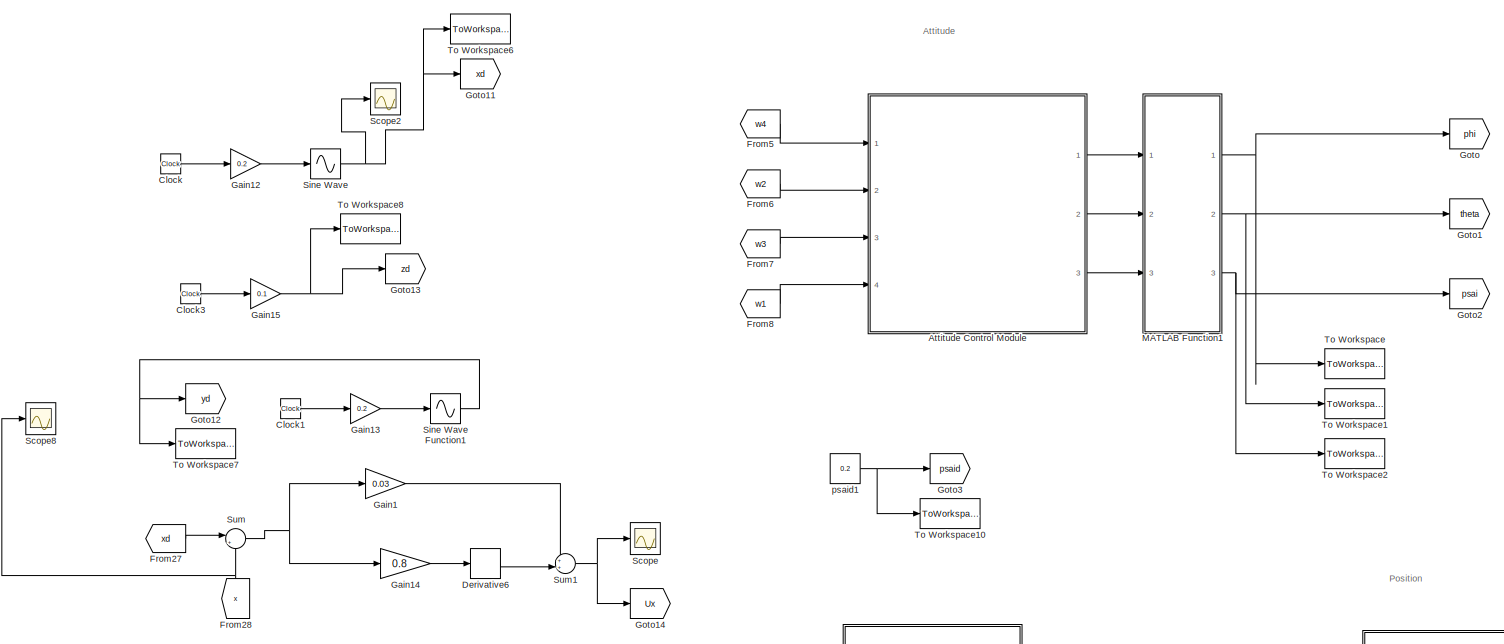
[diagram: root canvas - part 1/4, top center region]
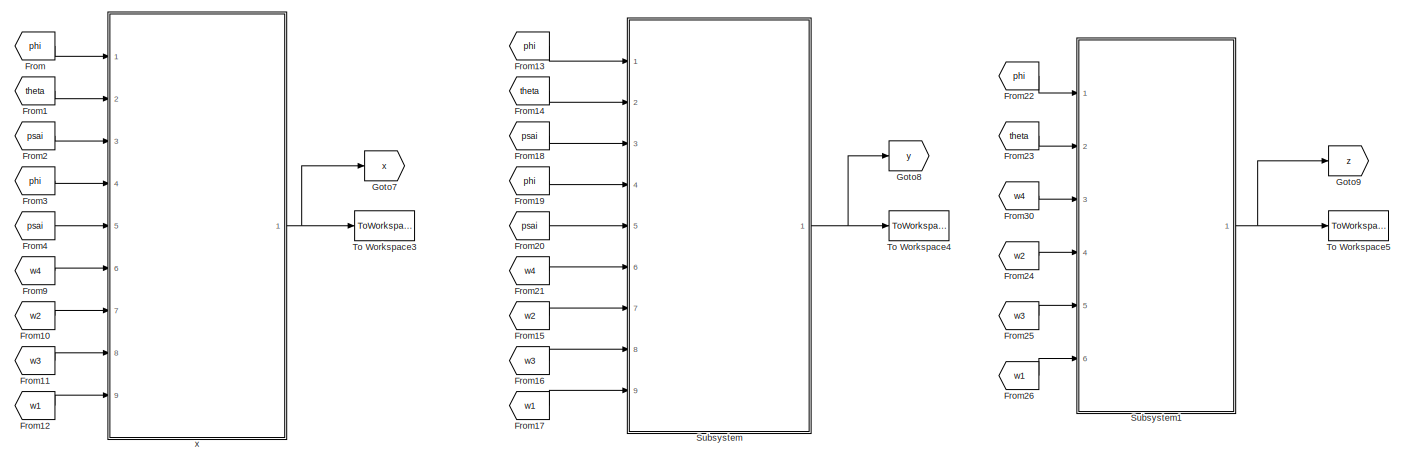
[diagram: root canvas - part 2/4, middle right region]
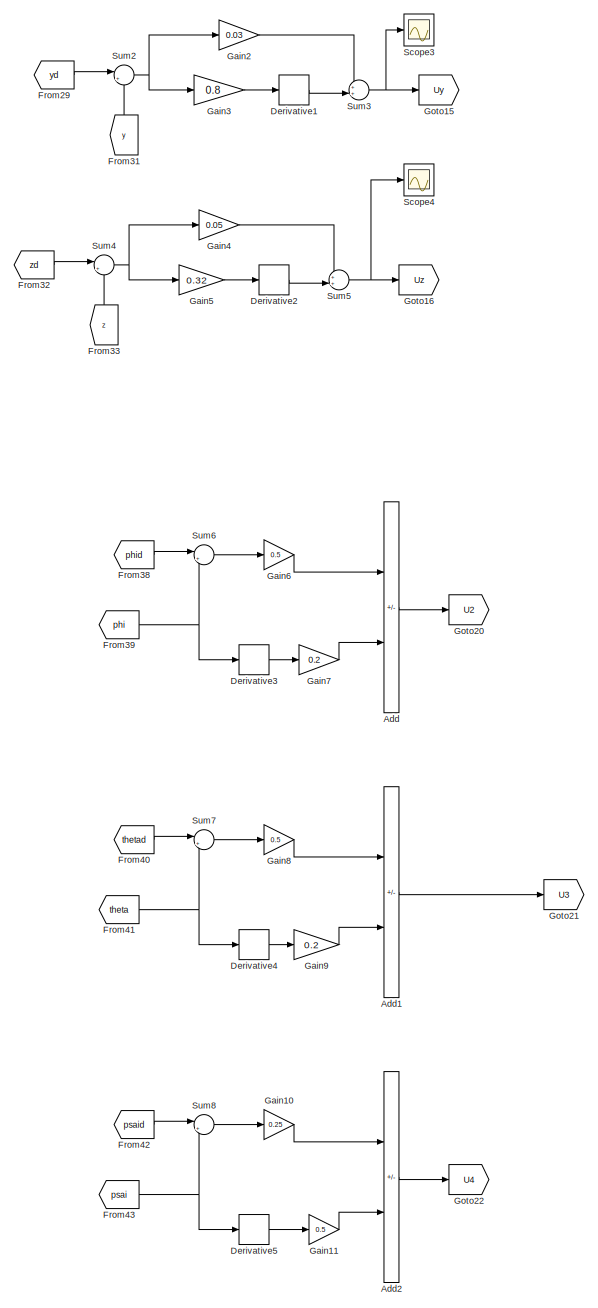
[diagram: root canvas - part 3/4, bottom left region]
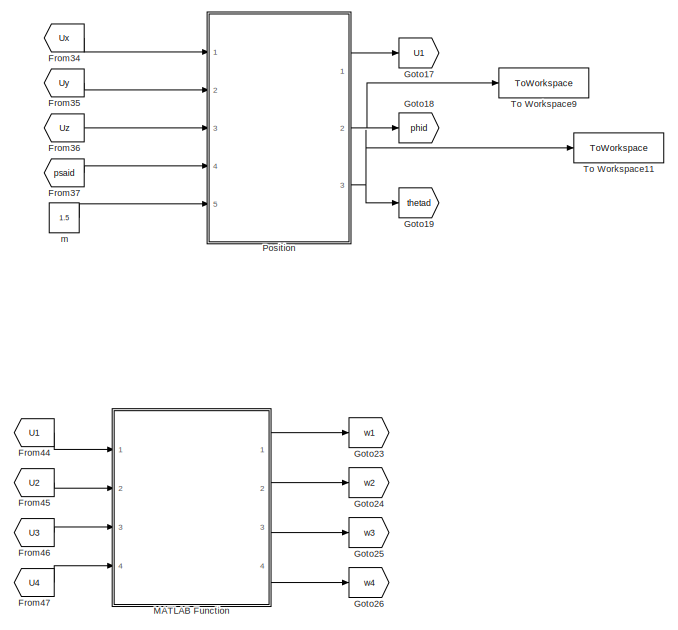
[diagram: root canvas - part 4/4, bottom center region]
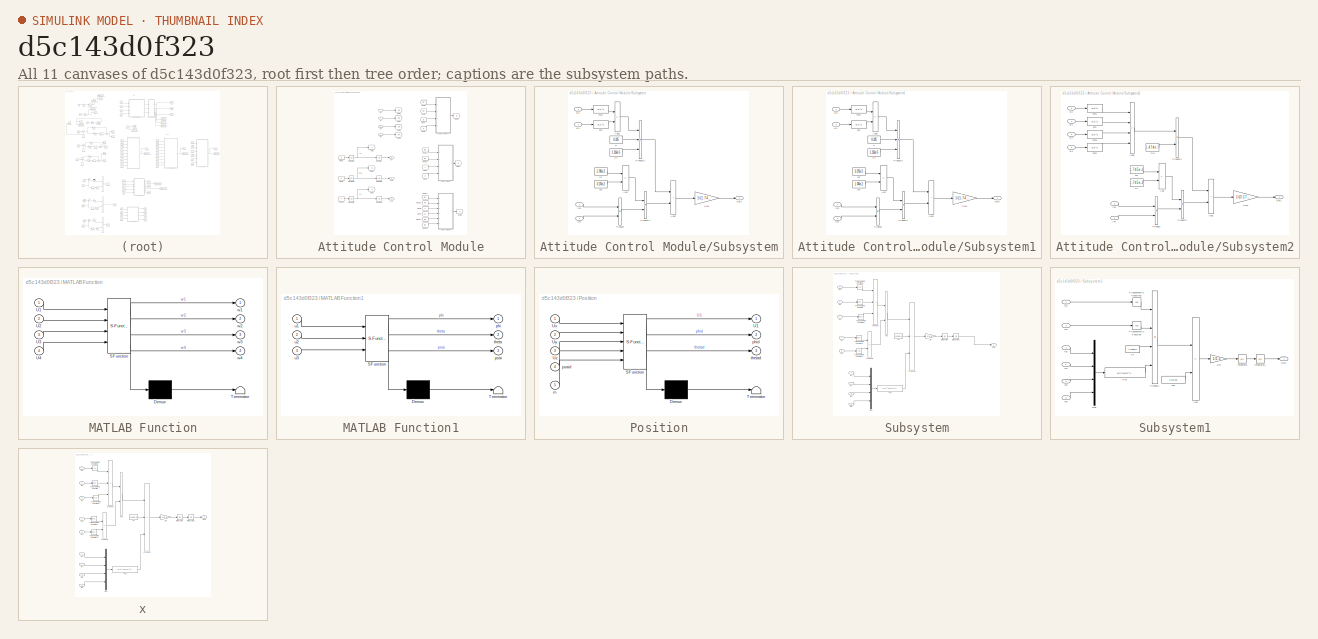
[diagram: thumbnail index - all 11 canvases of the model, root first then tree order]
MODEL slx_d5c143d0f323
KIND model
CONFIG AbsTol = auto
CONFIG EnableMultiTasking = off
CONFIG FixedStep = 0.1
CONFIG MaxStep = auto
CONFIG MinStep = auto
CONFIG RelTol = 1e-3
CONFIG SampleTimeConstraint = Unconstrained
CONFIG SolverName = FixedStepAuto
CONFIG StartTime = 0.0
CONFIG StopTime = 150
BLOCK [Sum] Add
  IconShape = rectangular
  Inputs = +-
  Ports = [2, 1]
BLOCK [Sum] Add1
  IconShape = rectangular
  Inputs = +-
  Ports = [2, 1]
BLOCK [Sum] Add2
  IconShape = rectangular
  Inputs = +-
  Ports = [2, 1]
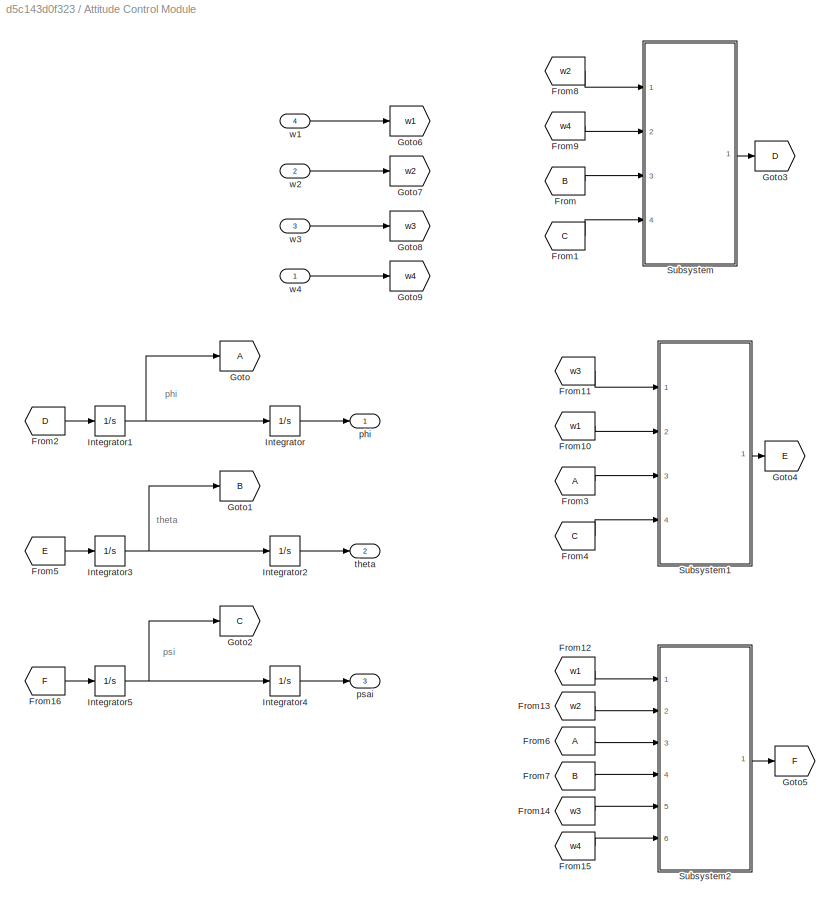
BLOCK [SubSystem] Attitude Control Module
  Ports = [4, 3]
  RequestExecContextInheritance = off
BLOCK [From] Attitude Control Module/From
  GotoTag = B
BLOCK [From] Attitude Control Module/From1
  GotoTag = C
BLOCK [From] Attitude Control Module/From10
  GotoTag = w1
BLOCK [From] Attitude Control Module/From11
  GotoTag = w3
BLOCK [From] Attitude Control Module/From12
  GotoTag = w1
BLOCK [From] Attitude Control Module/From13
  GotoTag = w2
BLOCK [From] Attitude Control Module/From14
  GotoTag = w3
BLOCK [From] Attitude Control Module/From15
  GotoTag = w4
BLOCK [From] Attitude Control Module/From16
  GotoTag = F
BLOCK [From] Attitude Control Module/From2
  GotoTag = D
BLOCK [From] Attitude Control Module/From3
BLOCK [From] Attitude Control Module/From4
  GotoTag = C
BLOCK [From] Attitude Control Module/From5
  GotoTag = E
BLOCK [From] Attitude Control Module/From6
BLOCK [From] Attitude Control Module/From7
  GotoTag = B
BLOCK [From] Attitude Control Module/From8
  GotoTag = w2
BLOCK [From] Attitude Control Module/From9
  GotoTag = w4
BLOCK [Goto] Attitude Control Module/Goto
BLOCK [Goto] Attitude Control Module/Goto1
  GotoTag = B
BLOCK [Goto] Attitude Control Module/Goto2
  GotoTag = C
BLOCK [Goto] Attitude Control Module/Goto3
  GotoTag = D
BLOCK [Goto] Attitude Control Module/Goto4
  GotoTag = E
BLOCK [Goto] Attitude Control Module/Goto5
  GotoTag = F
BLOCK [Goto] Attitude Control Module/Goto6
  GotoTag = w1
BLOCK [Goto] Attitude Control Module/Goto7
  GotoTag = w2
BLOCK [Goto] Attitude Control Module/Goto8
  GotoTag = w3
BLOCK [Goto] Attitude Control Module/Goto9
  GotoTag = w4
BLOCK [Integrator] Attitude Control Module/Integrator
  Ports = [1, 1]
BLOCK [Integrator] Attitude Control Module/Integrator1
  Ports = [1, 1]
BLOCK [Integrator] Attitude Control Module/Integrator2
  Ports = [1, 1]
BLOCK [Integrator] Attitude Control Module/Integrator3
  Ports = [1, 1]
BLOCK [Integrator] Attitude Control Module/Integrator4
  Ports = [1, 1]
BLOCK [Integrator] Attitude Control Module/Integrator5
  Ports = [1, 1]
BLOCK [SubSystem] Attitude Control Module/Subsystem
  Ports = [4, 1]
  RequestExecContextInheritance = off
BLOCK [Gain] Attitude Control Module/Subsystem/1//Jxx
  Gain = 1/(1.745e-2)
BLOCK [Sum] Attitude Control Module/Subsystem/Add
  IconShape = rectangular
  Inputs = +-
  Ports = [2, 1]
BLOCK [Sum] Attitude Control Module/Subsystem/Add1
  IconShape = rectangular
  Ports = [2, 1]
BLOCK [Sum] Attitude Control Module/Subsystem/Add2
  IconShape = rectangular
  Inputs = +-
  Ports = [2, 1]
BLOCK [Constant] Attitude Control Module/Subsystem/CT
  Value = 1.116e-5
BLOCK [Fcn] Attitude Control Module/Subsystem/Fcn
  Expr = u(1)^2
BLOCK [Fcn] Attitude Control Module/Subsystem/Fcn1
  Expr = u(1)^2
BLOCK [Inport] Attitude Control Module/Subsystem/In3
  Port = 3
BLOCK [Inport] Attitude Control Module/Subsystem/In4
  Port = 4
BLOCK [Constant] Attitude Control Module/Subsystem/Jyy
  Value = 1.745e-2
BLOCK [Constant] Attitude Control Module/Subsystem/Jzz 
  Value = 3.175e-2
BLOCK [Outport] Attitude Control Module/Subsystem/Out1
  VectorParamsAs1DForOutWhenUnconnected = off
BLOCK [Product] Attitude Control Module/Subsystem/Product
  Ports = [2, 1]
BLOCK [Product] Attitude Control Module/Subsystem/Product1
  Ports = [2, 1]
BLOCK [Product] Attitude Control Module/Subsystem/Product2
  Inputs = 3
  Ports = [3, 1]
BLOCK [Constant] Attitude Control Module/Subsystem/d
  Value = 0.225
BLOCK [Inport] Attitude Control Module/Subsystem/w2
BLOCK [Inport] Attitude Control Module/Subsystem/w4
  Port = 2
BLOCK [SubSystem] Attitude Control Module/Subsystem1
  Ports = [4, 1]
  RequestExecContextInheritance = off
BLOCK [Gain] Attitude Control Module/Subsystem1/1//Jxx
  Gain = 1/(1.745e-2)
BLOCK [Sum] Attitude Control Module/Subsystem1/Add
  IconShape = rectangular
  Inputs = +-
  Ports = [2, 1]
BLOCK [Sum] Attitude Control Module/Subsystem1/Add1
  IconShape = rectangular
  Ports = [2, 1]
BLOCK [Sum] Attitude Control Module/Subsystem1/Add2
  IconShape = rectangular
  Inputs = +-
  Ports = [2, 1]
BLOCK [Constant] Attitude Control Module/Subsystem1/CT
  Value = 1.116e-5
BLOCK [Fcn] Attitude Control Module/Subsystem1/Fcn
  Expr = u(1)^2
BLOCK [Fcn] Attitude Control Module/Subsystem1/Fcn1
  Expr = u(1)^2
BLOCK [Inport] Attitude Control Module/Subsystem1/In3
  Port = 3
BLOCK [Inport] Attitude Control Module/Subsystem1/In4
  Port = 4
BLOCK [Constant] Attitude Control Module/Subsystem1/Jxx
  Value = 1.745e-2
BLOCK [Constant] Attitude Control Module/Subsystem1/Jzz
  Value = 3.175e-2
BLOCK [Outport] Attitude Control Module/Subsystem1/Out1
  VectorParamsAs1DForOutWhenUnconnected = off
BLOCK [Product] Attitude Control Module/Subsystem1/Product
  Ports = [2, 1]
BLOCK [Product] Attitude Control Module/Subsystem1/Product1
  Ports = [2, 1]
BLOCK [Product] Attitude Control Module/Subsystem1/Product2
  Inputs = 3
  Ports = [3, 1]
BLOCK [Constant] Attitude Control Module/Subsystem1/d
  Value = 0.225
BLOCK [Inport] Attitude Control Module/Subsystem1/w1
  Port = 2
BLOCK [Inport] Attitude Control Module/Subsystem1/w3
BLOCK [SubSystem] Attitude Control Module/Subsystem2
  Ports = [6, 1]
  RequestExecContextInheritance = off
BLOCK [Gain] Attitude Control Module/Subsystem2/1//Jxx
  Gain = 1/(3.175e-2)
BLOCK [Sum] Attitude Control Module/Subsystem2/Add
  IconShape = rectangular
  Inputs = +-
  Ports = [2, 1]
BLOCK [Sum] Attitude Control Module/Subsystem2/Add1
  IconShape = rectangular
  Ports = [2, 1]
BLOCK [Sum] Attitude Control Module/Subsystem2/Add2
  IconShape = rectangular
  Inputs = +-+-
  Ports = [4, 1]
BLOCK [Constant] Attitude Control Module/Subsystem2/CM
  Value = 1.474e-7
BLOCK [Fcn] Attitude Control Module/Subsystem2/Fcn
  Expr = u(1)^2
BLOCK [Fcn] Attitude Control Module/Subsystem2/Fcn1
  Expr = u(1)^2
BLOCK [Fcn] Attitude Control Module/Subsystem2/Fcn2
  Expr = u(1)^2
BLOCK [Fcn] Attitude Control Module/Subsystem2/Fcn3
  Expr = u(1)^2
BLOCK [Inport] Attitude Control Module/Subsystem2/In3
  Port = 3
BLOCK [Inport] Attitude Control Module/Subsystem2/In4
  Port = 4
BLOCK [Constant] Attitude Control Module/Subsystem2/Jxx
  Value = 1.745e-2
BLOCK [Constant] Attitude Control Module/Subsystem2/Jyy
  Value = 1.745e-2
BLOCK [Outport] Attitude Control Module/Subsystem2/Out1
  VectorParamsAs1DForOutWhenUnconnected = off
BLOCK [Product] Attitude Control Module/Subsystem2/Product
  Ports = [2, 1]
BLOCK [Product] Attitude Control Module/Subsystem2/Product1
  Ports = [2, 1]
BLOCK [Product] Attitude Control Module/Subsystem2/Product2
  Ports = [2, 1]
BLOCK [Inport] Attitude Control Module/Subsystem2/w1
BLOCK [Inport] Attitude Control Module/Subsystem2/w2
  Port = 2
BLOCK [Inport] Attitude Control Module/Subsystem2/w3
  Port = 5
BLOCK [Inport] Attitude Control Module/Subsystem2/w4
  Port = 6
BLOCK [Outport] Attitude Control Module/phi
  VectorParamsAs1DForOutWhenUnconnected = off
BLOCK [Outport] Attitude Control Module/psai
  Port = 3
  VectorParamsAs1DForOutWhenUnconnected = off
BLOCK [Outport] Attitude Control Module/theta
  Port = 2
  VectorParamsAs1DForOutWhenUnconnected = off
BLOCK [Inport] Attitude Control Module/w1
  Port = 4
BLOCK [Inport] Attitude Control Module/w2
  Port = 2
BLOCK [Inport] Attitude Control Module/w3
  Port = 3
BLOCK [Inport] Attitude Control Module/w4
BLOCK [Clock] Clock
BLOCK [Clock] Clock1
BLOCK [Clock] Clock3
BLOCK [Derivative] Derivative1
BLOCK [Derivative] Derivative2
BLOCK [Derivative] Derivative3
BLOCK [Derivative] Derivative4
BLOCK [Derivative] Derivative5
BLOCK [Derivative] Derivative6
BLOCK [From] From
  GotoTag = phi
BLOCK [From] From1
  GotoTag = theta
BLOCK [From] From10
  GotoTag = w2
BLOCK [From] From11
  GotoTag = w3
BLOCK [From] From12
  GotoTag = w1
BLOCK [From] From13
  GotoTag = phi
BLOCK [From] From14
  GotoTag = theta
BLOCK [From] From15
  GotoTag = w2
BLOCK [From] From16
  GotoTag = w3
BLOCK [From] From17
  GotoTag = w1
BLOCK [From] From18
  GotoTag = psai
BLOCK [From] From19
  GotoTag = phi
BLOCK [From] From2
  GotoTag = psai
BLOCK [From] From20
  GotoTag = psai
BLOCK [From] From21
  GotoTag = w4
BLOCK [From] From22
  GotoTag = phi
BLOCK [From] From23
  GotoTag = theta
BLOCK [From] From24
  GotoTag = w2
BLOCK [From] From25
  GotoTag = w3
BLOCK [From] From26
  GotoTag = w1
BLOCK [From] From27
  GotoTag = xd
BLOCK [From] From28
  GotoTag = x
  NameLocation = right
BLOCK [From] From29
  GotoTag = yd
BLOCK [From] From3
  GotoTag = phi
BLOCK [From] From30
  GotoTag = w4
BLOCK [From] From31
  GotoTag = y
  NameLocation = right
BLOCK [From] From32
  GotoTag = zd
BLOCK [From] From33
  GotoTag = z
  NameLocation = right
BLOCK [From] From34
  GotoTag = Ux
BLOCK [From] From35
  GotoTag = Uy
BLOCK [From] From36
  GotoTag = Uz
BLOCK [From] From37
  GotoTag = psaid
BLOCK [From] From38
  GotoTag = phid
BLOCK [From] From39
  GotoTag = phi
BLOCK [From] From4
  GotoTag = psai
BLOCK [From] From40
  GotoTag = thetad
BLOCK [From] From41
  GotoTag = theta
BLOCK [From] From42
  GotoTag = psaid
BLOCK [From] From43
  GotoTag = psai
BLOCK [From] From44
  GotoTag = U1
BLOCK [From] From45
  GotoTag = U2
BLOCK [From] From46
  GotoTag = U3
BLOCK [From] From47
  GotoTag = U4
BLOCK [From] From5
  GotoTag = w4
BLOCK [From] From6
  GotoTag = w2
BLOCK [From] From7
  GotoTag = w3
BLOCK [From] From8
  GotoTag = w1
BLOCK [From] From9
  GotoTag = w4
BLOCK [Gain] Gain1
  Gain = 0.03
BLOCK [Gain] Gain10
  Gain = 0.25
BLOCK [Gain] Gain11
  Gain = 0.5
BLOCK [Gain] Gain12
  Gain = 0.2
BLOCK [Gain] Gain13
  Gain = 0.2
BLOCK [Gain] Gain14
  Gain = 0.8
BLOCK [Gain] Gain15
  Gain = 0.1
BLOCK [Gain] Gain2
  Gain = 0.03
BLOCK [Gain] Gain3
  Gain = 0.8
BLOCK [Gain] Gain4
  Gain = 0.05
BLOCK [Gain] Gain5
  Gain = 0.32
BLOCK [Gain] Gain6
  Gain = 0.5
BLOCK [Gain] Gain7
  Gain = 0.2
BLOCK [Gain] Gain8
  Gain = 0.5
BLOCK [Gain] Gain9
  Gain = 0.2
BLOCK [Goto] Goto
  GotoTag = phi
BLOCK [Goto] Goto1
  GotoTag = theta
BLOCK [Goto] Goto11
  GotoTag = xd
BLOCK [Goto] Goto12
  GotoTag = yd
BLOCK [Goto] Goto13
  GotoTag = zd
BLOCK [Goto] Goto14
  GotoTag = Ux
BLOCK [Goto] Goto15
  GotoTag = Uy
BLOCK [Goto] Goto16
  GotoTag = Uz
BLOCK [Goto] Goto17
  GotoTag = U1
BLOCK [Goto] Goto18
  GotoTag = phid
BLOCK [Goto] Goto19
  GotoTag = thetad
BLOCK [Goto] Goto2
  GotoTag = psai
BLOCK [Goto] Goto20
  GotoTag = U2
BLOCK [Goto] Goto21
  GotoTag = U3
BLOCK [Goto] Goto22
  GotoTag = U4
BLOCK [Goto] Goto23
  GotoTag = w1
BLOCK [Goto] Goto24
  GotoTag = w2
BLOCK [Goto] Goto25
  GotoTag = w3
BLOCK [Goto] Goto26
  GotoTag = w4
BLOCK [Goto] Goto3
  GotoTag = psaid
BLOCK [Goto] Goto7
  GotoTag = x
BLOCK [Goto] Goto8
  GotoTag = y
BLOCK [Goto] Goto9
  GotoTag = z
BLOCK [SubSystem] MATLAB Function
  ErrorFcn = Stateflow.Translate.translate
  PermitHierarchicalResolution = ExplicitOnly
  Ports = [4, 4]
  RequestExecContextInheritance = off
  SFBlockType = MATLAB Function
  TreatAsAtomicUnit = on
BLOCK [Demux] MATLAB Function/ Demux 
  Outputs = 1
  Ports = [1, 1]
BLOCK [S-Function] MATLAB Function/ SFunction 
  EnableBusSupport = on
  FunctionName = sf_sfun
  PortCounts = [4 5]
  Ports = [4, 5]
  SFcnIsStateOwnerBlock = off
  SFunctionDeploymentMode = off
  Tag = Stateflow S-Function 1
BLOCK [Terminator] MATLAB Function/ Terminator 
BLOCK [Inport] MATLAB Function/U1
BLOCK [Inport] MATLAB Function/U2
  Port = 2
BLOCK [Inport] MATLAB Function/U3
  Port = 3
BLOCK [Inport] MATLAB Function/U4
  Port = 4
BLOCK [Outport] MATLAB Function/w1
  VectorParamsAs1DForOutWhenUnconnected = off
BLOCK [Outport] MATLAB Function/w2
  Port = 2
  VectorParamsAs1DForOutWhenUnconnected = off
BLOCK [Outport] MATLAB Function/w3
  Port = 3
  VectorParamsAs1DForOutWhenUnconnected = off
BLOCK [Outport] MATLAB Function/w4
  Port = 4
  VectorParamsAs1DForOutWhenUnconnected = off
BLOCK [SubSystem] MATLAB Function1
  ErrorFcn = Stateflow.Translate.translate
  PermitHierarchicalResolution = ExplicitOnly
  Ports = [3, 3]
  RequestExecContextInheritance = off
  SFBlockType = MATLAB Function
  TreatAsAtomicUnit = on
BLOCK [Demux] MATLAB Function1/ Demux 
  Outputs = 1
  Ports = [1, 1]
BLOCK [S-Function] MATLAB Function1/ SFunction 
  EnableBusSupport = on
  FunctionName = sf_sfun
  PortCounts = [3 4]
  Ports = [3, 4]
  SFcnIsStateOwnerBlock = off
  SFunctionDeploymentMode = off
  Tag = Stateflow S-Function 3
BLOCK [Terminator] MATLAB Function1/ Terminator 
BLOCK [Outport] MATLAB Function1/phi
  VectorParamsAs1DForOutWhenUnconnected = off
BLOCK [Outport] MATLAB Function1/psai
  Port = 3
  VectorParamsAs1DForOutWhenUnconnected = off
BLOCK [Outport] MATLAB Function1/theta
  Port = 2
  VectorParamsAs1DForOutWhenUnconnected = off
BLOCK [Inport] MATLAB Function1/u1
BLOCK [Inport] MATLAB Function1/u2
  Port = 2
BLOCK [Inport] MATLAB Function1/u3
  Port = 3
BLOCK [SubSystem] Position
  ErrorFcn = Stateflow.Translate.translate
  PermitHierarchicalResolution = ExplicitOnly
  Ports = [5, 3]
  RequestExecContextInheritance = off
  SFBlockType = MATLAB Function
  TreatAsAtomicUnit = on
BLOCK [Demux] Position/ Demux 
  Outputs = 1
  Ports = [1, 1]
BLOCK [S-Function] Position/ SFunction 
  EnableBusSupport = on
  FunctionName = sf_sfun
  PortCounts = [5 4]
  Ports = [5, 4]
  SFcnIsStateOwnerBlock = off
  SFunctionDeploymentMode = off
  Tag = Stateflow S-Function 2
BLOCK [Terminator] Position/ Terminator 
BLOCK [Outport] Position/U1
  VectorParamsAs1DForOutWhenUnconnected = off
BLOCK [Inport] Position/Ux
BLOCK [Inport] Position/Uy
  Port = 2
BLOCK [Inport] Position/Uz
  Port = 3
BLOCK [Inport] Position/m
  Port = 5
BLOCK [Outport] Position/phid
  Port = 2
  VectorParamsAs1DForOutWhenUnconnected = off
BLOCK [Inport] Position/psaid
  Port = 4
BLOCK [Outport] Position/thetad
  Port = 3
  VectorParamsAs1DForOutWhenUnconnected = off
BLOCK [Scope] Scope
  Floating = off
  NumInputPorts = 1
  Ports = [1]
  ScopeSpecificationString = Simulink.scopes.TimeScopeBlockCfg('CurrentConfiguration', extmgr.ConfigurationSet(extmgr.Configuration('Core','General UI',true),extmgr.Configuration('Core','Source UI',true),extmgr.Configuration('Sources','WiredSimulink',true,'DataLoggingVariableName','ScopeData1'),extmgr.Configuration('Visuals','Time Domain',true,'SerializedDisplays',{struct('MinYLimReal','-0.13344','MaxYLimReal','0.37231','YLab...<+1363ch>
BLOCK [Scope] Scope2
  Floating = off
  NumInputPorts = 1
  Ports = [1]
  ScopeSpecificationString = Simulink.scopes.TimeScopeBlockCfg('CurrentConfiguration', extmgr.ConfigurationSet(extmgr.Configuration('Core','General UI',true),extmgr.Configuration('Core','Source UI',true),extmgr.Configuration('Sources','WiredSimulink',true),extmgr.Configuration('Visuals','Time Domain',true,'SerializedDisplays',{struct('MinYLimReal','-2.5','MaxYLimReal','2.5','YLabelReal','','MinYLimMag','0.00000','MaxYLimMag',...<+1340ch>
BLOCK [Scope] Scope3
  Floating = off
  NumInputPorts = 1
  Ports = [1]
  ScopeSpecificationString = Simulink.scopes.TimeScopeBlockCfg('CurrentConfiguration', extmgr.ConfigurationSet(extmgr.Configuration('Core','General UI',true),extmgr.Configuration('Core','Source UI',true),extmgr.Configuration('Sources','WiredSimulink',true,'DataLoggingVariableName','ScopeData2'),extmgr.Configuration('Visuals','Time Domain',true,'SerializedDisplays',{struct('MinYLimReal','-0.10435','MaxYLimReal','0.10335','YLab...<+1363ch>
BLOCK [Scope] Scope4
  Floating = off
  NumInputPorts = 1
  Ports = [1]
  ScopeSpecificationString = Simulink.scopes.TimeScopeBlockCfg('CurrentConfiguration', extmgr.ConfigurationSet(extmgr.Configuration('Core','General UI',true),extmgr.Configuration('Core','Source UI',true),extmgr.Configuration('Sources','WiredSimulink',true,'DataLoggingVariableName','ScopeData3'),extmgr.Configuration('Visuals','Time Domain',true,'SerializedDisplays',{struct('MinYLimReal','-0.00635','MaxYLimReal','0.03636','YLab...<+1363ch>
BLOCK [Scope] Scope8
  Floating = off
  NumInputPorts = 1
  Ports = [1]
  ScopeSpecificationString = Simulink.scopes.TimeScopeBlockCfg('CurrentConfiguration', extmgr.ConfigurationSet(extmgr.Configuration('Core','General UI',true),extmgr.Configuration('Core','Source UI',true),extmgr.Configuration('Sources','WiredSimulink',true,'DataLoggingVariableName','ScopeData7'),extmgr.Configuration('Visuals','Time Domain',true,'SerializedDisplays',{struct('MinYLimReal','-2.60287','MaxYLimReal','2.59559','YLab...<+1360ch>
BLOCK [Sin] Sine Wave
  Amplitude = 2
  Ports = [1, 1]
  SampleTime = 0
  TimeSource = Use external signal
BLOCK [Sin] Sine Wave Function1
  Amplitude = 2
  Phase = pi/2
  Ports = [1, 1]
  SampleTime = 0
  TimeSource = Use external signal
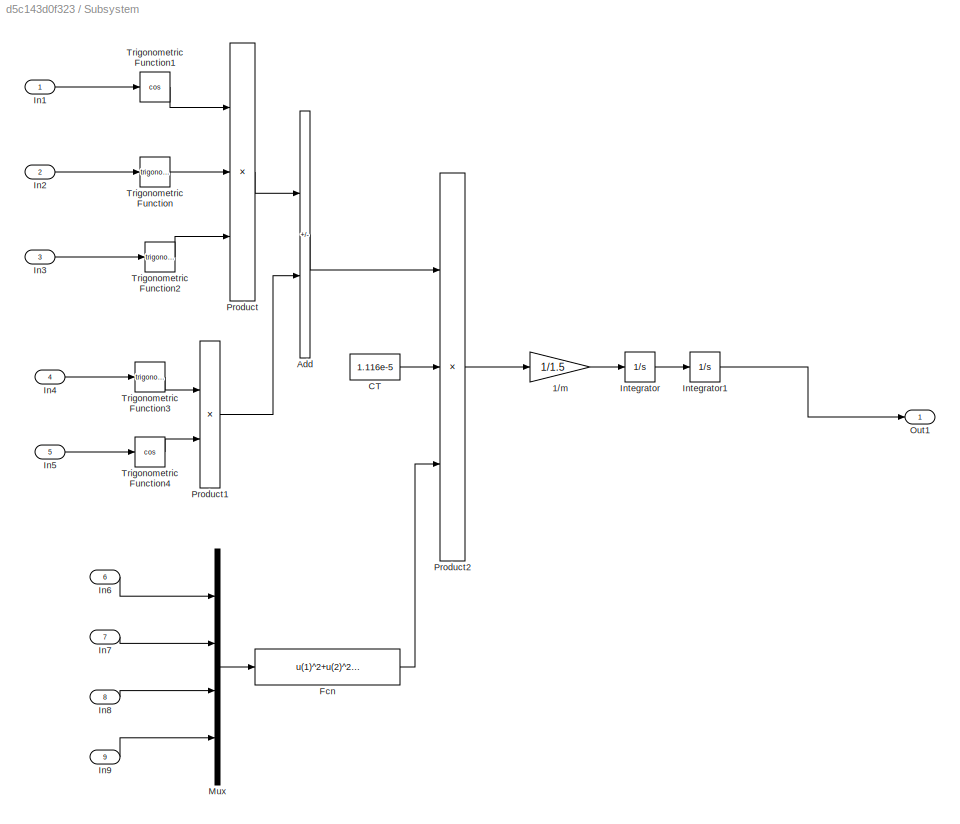
BLOCK [SubSystem] Subsystem
  Ports = [9, 1]
  RequestExecContextInheritance = off
BLOCK [Gain] Subsystem/1//m
  Gain = 1/1.5
BLOCK [Sum] Subsystem/Add
  IconShape = rectangular
  Inputs = +-
  Ports = [2, 1]
BLOCK [Constant] Subsystem/CT
  Value = 1.116e-5
BLOCK [Fcn] Subsystem/Fcn
  Expr = u(1)^2+u(2)^2+u(3)^2+u(4)^2
BLOCK [Inport] Subsystem/In1
BLOCK [Inport] Subsystem/In2
  Port = 2
BLOCK [Inport] Subsystem/In3
  Port = 3
BLOCK [Inport] Subsystem/In4
  Port = 4
BLOCK [Inport] Subsystem/In5
  Port = 5
BLOCK [Inport] Subsystem/In6
  Port = 6
BLOCK [Inport] Subsystem/In7
  Port = 7
BLOCK [Inport] Subsystem/In8
  Port = 8
BLOCK [Inport] Subsystem/In9
  Port = 9
BLOCK [Integrator] Subsystem/Integrator
  Ports = [1, 1]
BLOCK [Integrator] Subsystem/Integrator1
  Ports = [1, 1]
BLOCK [Mux] Subsystem/Mux
  DisplayOption = bar
  Ports = [4, 1]
BLOCK [Outport] Subsystem/Out1
  VectorParamsAs1DForOutWhenUnconnected = off
BLOCK [Product] Subsystem/Product
  Inputs = 3
  Ports = [3, 1]
BLOCK [Product] Subsystem/Product1
  Ports = [2, 1]
BLOCK [Product] Subsystem/Product2
  Inputs = 3
  Ports = [3, 1]
BLOCK [Trigonometry] Subsystem/Trigonometric Function
  Ports = [1, 1]
BLOCK [Trigonometry] Subsystem/Trigonometric Function1
  Operator = cos
  Ports = [1, 1]
BLOCK [Trigonometry] Subsystem/Trigonometric Function2
  Ports = [1, 1]
BLOCK [Trigonometry] Subsystem/Trigonometric Function3
  Ports = [1, 1]
BLOCK [Trigonometry] Subsystem/Trigonometric Function4
  Operator = cos
  Ports = [1, 1]
BLOCK [SubSystem] Subsystem1
  Ports = [6, 1]
  RequestExecContextInheritance = off
BLOCK [Gain] Subsystem1/1//m
  Gain = 1/1.5
BLOCK [Sum] Subsystem1/Add
  IconShape = rectangular
  Inputs = +-
  Ports = [2, 1]
BLOCK [Constant] Subsystem1/CT
  Value = 1.116e-5
BLOCK [Fcn] Subsystem1/Fcn
  Expr = u(1)^2+u(2)^2+u(3)^2+u(4)^2
BLOCK [Inport] Subsystem1/In1
BLOCK [Inport] Subsystem1/In2
  Port = 2
BLOCK [Inport] Subsystem1/In3
  Port = 3
BLOCK [Inport] Subsystem1/In4
  Port = 4
BLOCK [Inport] Subsystem1/In5
  Port = 5
BLOCK [Inport] Subsystem1/In6
  Port = 6
BLOCK [Integrator] Subsystem1/Integrator
  Ports = [1, 1]
BLOCK [Integrator] Subsystem1/Integrator1
  Ports = [1, 1]
BLOCK [Mux] Subsystem1/Mux
  DisplayOption = bar
  Ports = [4, 1]
BLOCK [Outport] Subsystem1/Out1
  VectorParamsAs1DForOutWhenUnconnected = off
BLOCK [Product] Subsystem1/Product1
  Inputs = 4
  Ports = [4, 1]
BLOCK [Trigonometry] Subsystem1/Trigonometric Function
  Operator = cos
  Ports = [1, 1]
BLOCK [Trigonometry] Subsystem1/Trigonometric Function1
  Operator = cos
  Ports = [1, 1]
BLOCK [Constant] Subsystem1/mg
  Value = 1.5*9.81
BLOCK [Sum] Sum
  Inputs = |+-
  Ports = [2, 1]
BLOCK [Sum] Sum1
  Inputs = ++|
  Ports = [2, 1]
BLOCK [Sum] Sum2
  Inputs = |+-
  Ports = [2, 1]
BLOCK [Sum] Sum3
  Inputs = ++|
  Ports = [2, 1]
BLOCK [Sum] Sum4
  Inputs = |+-
  Ports = [2, 1]
BLOCK [Sum] Sum5
  Inputs = ++|
  Ports = [2, 1]
BLOCK [Sum] Sum6
  Inputs = |+-
  Ports = [2, 1]
BLOCK [Sum] Sum7
  Inputs = |+-
  Ports = [2, 1]
BLOCK [Sum] Sum8
  Inputs = |+-
  Ports = [2, 1]
BLOCK [ToWorkspace] To Workspace
  FixptAsFi = on
  MaxDataPoints = inf
  Ports = [1]
  SampleTime = -1
  VariableName = phi
BLOCK [ToWorkspace] To Workspace1
  FixptAsFi = on
  MaxDataPoints = inf
  Ports = [1]
  SampleTime = -1
  VariableName = theta
BLOCK [ToWorkspace] To Workspace10
  FixptAsFi = on
  MaxDataPoints = inf
  Ports = [1]
  SampleTime = -1
  VariableName = psaid
BLOCK [ToWorkspace] To Workspace11
  FixptAsFi = on
  MaxDataPoints = inf
  Ports = [1]
  SampleTime = -1
  VariableName = thetad
BLOCK [ToWorkspace] To Workspace2
  FixptAsFi = on
  MaxDataPoints = inf
  Ports = [1]
  SampleTime = -1
  VariableName = psai
BLOCK [ToWorkspace] To Workspace3
  FixptAsFi = on
  MaxDataPoints = inf
  Ports = [1]
  SampleTime = -1
  VariableName = x
BLOCK [ToWorkspace] To Workspace4
  FixptAsFi = on
  MaxDataPoints = inf
  Ports = [1]
  SampleTime = -1
  VariableName = y
BLOCK [ToWorkspace] To Workspace5
  FixptAsFi = on
  MaxDataPoints = inf
  Ports = [1]
  SampleTime = -1
  VariableName = z
BLOCK [ToWorkspace] To Workspace6
  FixptAsFi = on
  MaxDataPoints = inf
  Ports = [1]
  SampleTime = -1
  VariableName = xd
BLOCK [ToWorkspace] To Workspace7
  FixptAsFi = on
  MaxDataPoints = inf
  Ports = [1]
  SampleTime = -1
  VariableName = yd
BLOCK [ToWorkspace] To Workspace8
  FixptAsFi = on
  MaxDataPoints = inf
  Ports = [1]
  SampleTime = -1
  VariableName = zd
BLOCK [ToWorkspace] To Workspace9
  FixptAsFi = on
  MaxDataPoints = inf
  Ports = [1]
  SampleTime = -1
  VariableName = phid
BLOCK [Constant] m
  Value = 1.5
BLOCK [Constant] psaid1
  Value = 0.2
BLOCK [SubSystem] x
  Ports = [9, 1]
  RequestExecContextInheritance = off
BLOCK [Gain] x/1//m
  Gain = 1/1.5
BLOCK [Sum] x/Add
  IconShape = rectangular
  Ports = [2, 1]
BLOCK [Constant] x/CT
  Value = 1.116e-5
BLOCK [Fcn] x/Fcn
  Expr = u(1)^2+u(2)^2+u(3)^2+u(4)^2
BLOCK [Inport] x/In1
BLOCK [Inport] x/In2
  Port = 2
BLOCK [Inport] x/In3
  Port = 3
BLOCK [Inport] x/In4
  Port = 4
BLOCK [Inport] x/In5
  Port = 5
BLOCK [Inport] x/In6
  Port = 6
BLOCK [Inport] x/In7
  Port = 7
BLOCK [Inport] x/In8
  Port = 8
BLOCK [Inport] x/In9
  Port = 9
BLOCK [Integrator] x/Integrator
  Ports = [1, 1]
BLOCK [Integrator] x/Integrator1
  Ports = [1, 1]
BLOCK [Mux] x/Mux
  DisplayOption = bar
  Ports = [4, 1]
BLOCK [Outport] x/Out1
  VectorParamsAs1DForOutWhenUnconnected = off
BLOCK [Product] x/Product
  Inputs = 3
  Ports = [3, 1]
BLOCK [Product] x/Product1
  Ports = [2, 1]
BLOCK [Product] x/Product2
  Inputs = 3
  Ports = [3, 1]
BLOCK [Trigonometry] x/Trigonometric Function
  Ports = [1, 1]
BLOCK [Trigonometry] x/Trigonometric Function1
  Operator = cos
  Ports = [1, 1]
BLOCK [Trigonometry] x/Trigonometric Function2
  Operator = cos
  Ports = [1, 1]
BLOCK [Trigonometry] x/Trigonometric Function3
  Ports = [1, 1]
BLOCK [Trigonometry] x/Trigonometric Function4
  Ports = [1, 1]
ANNOTATION (root): Position
ANNOTATION (root): Attitude
ANNOTATION Attitude Control Module: phi
ANNOTATION Attitude Control Module: psi
ANNOTATION Attitude Control Module: theta
LINE Add1:1 -> Goto21:1
LINE Add2:1 -> Goto22:1
LINE Add:1 -> Goto20:1
LINE Attitude Control Module/From10:1 -> Attitude Control Module/Subsystem1:2
LINE Attitude Control Module/From11:1 -> Attitude Control Module/Subsystem1:1
LINE Attitude Control Module/From12:1 -> Attitude Control Module/Subsystem2:1
LINE Attitude Control Module/From13:1 -> Attitude Control Module/Subsystem2:2
LINE Attitude Control Module/From14:1 -> Attitude Control Module/Subsystem2:5
LINE Attitude Control Module/From15:1 -> Attitude Control Module/Subsystem2:6
LINE Attitude Control Module/From16:1 -> Attitude Control Module/Integrator5:1
LINE Attitude Control Module/From1:1 -> Attitude Control Module/Subsystem:4
LINE Attitude Control Module/From2:1 -> Attitude Control Module/Integrator1:1
LINE Attitude Control Module/From3:1 -> Attitude Control Module/Subsystem1:3
LINE Attitude Control Module/From4:1 -> Attitude Control Module/Subsystem1:4
LINE Attitude Control Module/From5:1 -> Attitude Control Module/Integrator3:1
LINE Attitude Control Module/From6:1 -> Attitude Control Module/Subsystem2:3
LINE Attitude Control Module/From7:1 -> Attitude Control Module/Subsystem2:4
LINE Attitude Control Module/From8:1 -> Attitude Control Module/Subsystem:1
LINE Attitude Control Module/From9:1 -> Attitude Control Module/Subsystem:2
LINE Attitude Control Module/From:1 -> Attitude Control Module/Subsystem:3
NET Attitude Control Module/Integrator1:1 -> Attitude Control Module/Goto:1, Attitude Control Module/Integrator:1
LINE Attitude Control Module/Integrator2:1 -> Attitude Control Module/theta:1
NET Attitude Control Module/Integrator3:1 -> Attitude Control Module/Goto1:1, Attitude Control Module/Integrator2:1
LINE Attitude Control Module/Integrator4:1 -> Attitude Control Module/psai:1
NET Attitude Control Module/Integrator5:1 -> Attitude Control Module/Goto2:1, Attitude Control Module/Integrator4:1
LINE Attitude Control Module/Integrator:1 -> Attitude Control Module/phi:1
LINE Attitude Control Module/Subsystem/1//Jxx:1 -> Attitude Control Module/Subsystem/Out1:1
LINE Attitude Control Module/Subsystem/Add1:1 -> Attitude Control Module/Subsystem/1//Jxx:1
LINE Attitude Control Module/Subsystem/Add2:1 -> Attitude Control Module/Subsystem/Product2:1
LINE Attitude Control Module/Subsystem/Add:1 -> Attitude Control Module/Subsystem/Product1:1
LINE Attitude Control Module/Subsystem/CT:1 -> Attitude Control Module/Subsystem/Product2:3
LINE Attitude Control Module/Subsystem/Fcn1:1 -> Attitude Control Module/Subsystem/Add2:1
LINE Attitude Control Module/Subsystem/Fcn:1 -> Attitude Control Module/Subsystem/Add2:2
LINE Attitude Control Module/Subsystem/In3:1 -> Attitude Control Module/Subsystem/Product:1
LINE Attitude Control Module/Subsystem/In4:1 -> Attitude Control Module/Subsystem/Product:2
LINE Attitude Control Module/Subsystem/Jyy:1 -> Attitude Control Module/Subsystem/Add:1
LINE Attitude Control Module/Subsystem/Jzz :1 -> Attitude Control Module/Subsystem/Add:2
LINE Attitude Control Module/Subsystem/Product1:1 -> Attitude Control Module/Subsystem/Add1:2
LINE Attitude Control Module/Subsystem/Product2:1 -> Attitude Control Module/Subsystem/Add1:1
LINE Attitude Control Module/Subsystem/Product:1 -> Attitude Control Module/Subsystem/Product1:2
LINE Attitude Control Module/Subsystem/d:1 -> Attitude Control Module/Subsystem/Product2:2
LINE Attitude Control Module/Subsystem/w2:1 -> Attitude Control Module/Subsystem/Fcn1:1
LINE Attitude Control Module/Subsystem/w4:1 -> Attitude Control Module/Subsystem/Fcn:1
LINE Attitude Control Module/Subsystem1/1//Jxx:1 -> Attitude Control Module/Subsystem1/Out1:1
LINE Attitude Control Module/Subsystem1/Add1:1 -> Attitude Control Module/Subsystem1/1//Jxx:1
LINE Attitude Control Module/Subsystem1/Add2:1 -> Attitude Control Module/Subsystem1/Product2:1
LINE Attitude Control Module/Subsystem1/Add:1 -> Attitude Control Module/Subsystem1/Product1:1
LINE Attitude Control Module/Subsystem1/CT:1 -> Attitude Control Module/Subsystem1/Product2:3
LINE Attitude Control Module/Subsystem1/Fcn1:1 -> Attitude Control Module/Subsystem1/Add2:1
LINE Attitude Control Module/Subsystem1/Fcn:1 -> Attitude Control Module/Subsystem1/Add2:2
LINE Attitude Control Module/Subsystem1/In3:1 -> Attitude Control Module/Subsystem1/Product:1
LINE Attitude Control Module/Subsystem1/In4:1 -> Attitude Control Module/Subsystem1/Product:2
LINE Attitude Control Module/Subsystem1/Jxx:1 -> Attitude Control Module/Subsystem1/Add:2
LINE Attitude Control Module/Subsystem1/Jzz:1 -> Attitude Control Module/Subsystem1/Add:1
LINE Attitude Control Module/Subsystem1/Product1:1 -> Attitude Control Module/Subsystem1/Add1:2
LINE Attitude Control Module/Subsystem1/Product2:1 -> Attitude Control Module/Subsystem1/Add1:1
LINE Attitude Control Module/Subsystem1/Product:1 -> Attitude Control Module/Subsystem1/Product1:2
LINE Attitude Control Module/Subsystem1/d:1 -> Attitude Control Module/Subsystem1/Product2:2
LINE Attitude Control Module/Subsystem1/w1:1 -> Attitude Control Module/Subsystem1/Fcn:1
LINE Attitude Control Module/Subsystem1/w3:1 -> Attitude Control Module/Subsystem1/Fcn1:1
LINE Attitude Control Module/Subsystem1:1 -> Attitude Control Module/Goto4:1
LINE Attitude Control Module/Subsystem2/1//Jxx:1 -> Attitude Control Module/Subsystem2/Out1:1
LINE Attitude Control Module/Subsystem2/Add1:1 -> Attitude Control Module/Subsystem2/1//Jxx:1
LINE Attitude Control Module/Subsystem2/Add2:1 -> Attitude Control Module/Subsystem2/Product2:1
LINE Attitude Control Module/Subsystem2/Add:1 -> Attitude Control Module/Subsystem2/Product1:1
LINE Attitude Control Module/Subsystem2/CM:1 -> Attitude Control Module/Subsystem2/Product2:2
LINE Attitude Control Module/Subsystem2/Fcn1:1 -> Attitude Control Module/Subsystem2/Add2:1
LINE Attitude Control Module/Subsystem2/Fcn2:1 -> Attitude Control Module/Subsystem2/Add2:4
LINE Attitude Control Module/Subsystem2/Fcn3:1 -> Attitude Control Module/Subsystem2/Add2:3
LINE Attitude Control Module/Subsystem2/Fcn:1 -> Attitude Control Module/Subsystem2/Add2:2
LINE Attitude Control Module/Subsystem2/In3:1 -> Attitude Control Module/Subsystem2/Product:1
LINE Attitude Control Module/Subsystem2/In4:1 -> Attitude Control Module/Subsystem2/Product:2
LINE Attitude Control Module/Subsystem2/Jxx:1 -> Attitude Control Module/Subsystem2/Add:1
LINE Attitude Control Module/Subsystem2/Jyy:1 -> Attitude Control Module/Subsystem2/Add:2
LINE Attitude Control Module/Subsystem2/Product1:1 -> Attitude Control Module/Subsystem2/Add1:2
LINE Attitude Control Module/Subsystem2/Product2:1 -> Attitude Control Module/Subsystem2/Add1:1
LINE Attitude Control Module/Subsystem2/Product:1 -> Attitude Control Module/Subsystem2/Product1:2
LINE Attitude Control Module/Subsystem2/w1:1 -> Attitude Control Module/Subsystem2/Fcn:1
LINE Attitude Control Module/Subsystem2/w2:1 -> Attitude Control Module/Subsystem2/Fcn1:1
LINE Attitude Control Module/Subsystem2/w3:1 -> Attitude Control Module/Subsystem2/Fcn2:1
LINE Attitude Control Module/Subsystem2/w4:1 -> Attitude Control Module/Subsystem2/Fcn3:1
LINE Attitude Control Module/Subsystem2:1 -> Attitude Control Module/Goto5:1
LINE Attitude Control Module/Subsystem:1 -> Attitude Control Module/Goto3:1
LINE Attitude Control Module/w1:1 -> Attitude Control Module/Goto6:1
LINE Attitude Control Module/w2:1 -> Attitude Control Module/Goto7:1
LINE Attitude Control Module/w3:1 -> Attitude Control Module/Goto8:1
LINE Attitude Control Module/w4:1 -> Attitude Control Module/Goto9:1
LINE Attitude Control Module:1 -> MATLAB Function1:1
LINE Attitude Control Module:2 -> MATLAB Function1:2
LINE Attitude Control Module:3 -> MATLAB Function1:3
LINE Clock1:1 -> Gain13:1
LINE Clock3:1 -> Gain15:1
LINE Clock:1 -> Gain12:1
LINE Derivative1:1 -> Sum3:2
LINE Derivative2:1 -> Sum5:2
LINE Derivative3:1 -> Gain7:1
LINE Derivative4:1 -> Gain9:1
LINE Derivative5:1 -> Gain11:1
LINE Derivative6:1 -> Sum1:2
LINE From10:1 -> x:7
LINE From11:1 -> x:8
LINE From12:1 -> x:9
LINE From13:1 -> Subsystem:1
LINE From14:1 -> Subsystem:2
LINE From15:1 -> Subsystem:7
LINE From16:1 -> Subsystem:8
LINE From17:1 -> Subsystem:9
LINE From18:1 -> Subsystem:3
LINE From19:1 -> Subsystem:4
LINE From1:1 -> x:2
LINE From20:1 -> Subsystem:5
LINE From21:1 -> Subsystem:6
LINE From22:1 -> Subsystem1:1
LINE From23:1 -> Subsystem1:2
LINE From24:1 -> Subsystem1:4
LINE From25:1 -> Subsystem1:5
LINE From26:1 -> Subsystem1:6
LINE From27:1 -> Sum:1
NET From28:1 -> Scope8:1, Sum:2
LINE From29:1 -> Sum2:1
LINE From2:1 -> x:3
LINE From30:1 -> Subsystem1:3
LINE From31:1 -> Sum2:2
LINE From32:1 -> Sum4:1
LINE From33:1 -> Sum4:2
LINE From34:1 -> Position:1
LINE From35:1 -> Position:2
LINE From36:1 -> Position:3
LINE From37:1 -> Position:4
LINE From38:1 -> Sum6:1
NET From39:1 -> Derivative3:1, Sum6:2
LINE From3:1 -> x:4
LINE From40:1 -> Sum7:1
NET From41:1 -> Derivative4:1, Sum7:2
LINE From42:1 -> Sum8:1
NET From43:1 -> Derivative5:1, Sum8:2
LINE From44:1 -> MATLAB Function:1
LINE From45:1 -> MATLAB Function:2
LINE From46:1 -> MATLAB Function:3
LINE From47:1 -> MATLAB Function:4
LINE From4:1 -> x:5
LINE From5:1 -> Attitude Control Module:1
LINE From6:1 -> Attitude Control Module:2
LINE From7:1 -> Attitude Control Module:3
LINE From8:1 -> Attitude Control Module:4
LINE From9:1 -> x:6
LINE From:1 -> x:1
LINE Gain10:1 -> Add2:1
LINE Gain11:1 -> Add2:2
LINE Gain12:1 -> Sine Wave:1
LINE Gain13:1 -> Sine Wave Function1:1
LINE Gain14:1 -> Derivative6:1
NET Gain15:1 -> Goto13:1, To Workspace8:1
LINE Gain1:1 -> Sum1:1
LINE Gain2:1 -> Sum3:1
LINE Gain3:1 -> Derivative1:1
LINE Gain4:1 -> Sum5:1
LINE Gain5:1 -> Derivative2:1
LINE Gain6:1 -> Add:1
LINE Gain7:1 -> Add:2
LINE Gain8:1 -> Add1:1
LINE Gain9:1 -> Add1:2
NET MATLAB Function1:1 -> Goto:1, To Workspace:1
NET MATLAB Function1:2 -> Goto1:1, To Workspace1:1
NET MATLAB Function1:3 -> Goto2:1, To Workspace2:1
LINE MATLAB Function:1 -> Goto23:1
LINE MATLAB Function:2 -> Goto24:1
LINE MATLAB Function:3 -> Goto25:1
LINE MATLAB Function:4 -> Goto26:1
LINE Position:1 -> Goto17:1
NET Position:2 -> Goto18:1, To Workspace9:1
NET Position:3 -> Goto19:1, To Workspace11:1
NET Sine Wave Function1:1 -> Goto12:1, To Workspace7:1
NET Sine Wave:1 -> Goto11:1, Scope2:1, To Workspace6:1
LINE Subsystem/1//m:1 -> Subsystem/Integrator:1
LINE Subsystem/Add:1 -> Subsystem/Product2:1
LINE Subsystem/CT:1 -> Subsystem/Product2:2
LINE Subsystem/Fcn:1 -> Subsystem/Product2:3
LINE Subsystem/In1:1 -> Subsystem/Trigonometric Function1:1
LINE Subsystem/In2:1 -> Subsystem/Trigonometric Function:1
LINE Subsystem/In3:1 -> Subsystem/Trigonometric Function2:1
LINE Subsystem/In4:1 -> Subsystem/Trigonometric Function3:1
LINE Subsystem/In5:1 -> Subsystem/Trigonometric Function4:1
LINE Subsystem/In6:1 -> Subsystem/Mux:1
LINE Subsystem/In7:1 -> Subsystem/Mux:2
LINE Subsystem/In8:1 -> Subsystem/Mux:3
LINE Subsystem/In9:1 -> Subsystem/Mux:4
LINE Subsystem/Integrator1:1 -> Subsystem/Out1:1
LINE Subsystem/Integrator:1 -> Subsystem/Integrator1:1
LINE Subsystem/Mux:1 -> Subsystem/Fcn:1
LINE Subsystem/Product1:1 -> Subsystem/Add:2
LINE Subsystem/Product2:1 -> Subsystem/1//m:1
LINE Subsystem/Product:1 -> Subsystem/Add:1
LINE Subsystem/Trigonometric Function1:1 -> Subsystem/Product:1
LINE Subsystem/Trigonometric Function2:1 -> Subsystem/Product:3
LINE Subsystem/Trigonometric Function3:1 -> Subsystem/Product1:1
LINE Subsystem/Trigonometric Function4:1 -> Subsystem/Product1:2
LINE Subsystem/Trigonometric Function:1 -> Subsystem/Product:2
LINE Subsystem1/1//m:1 -> Subsystem1/Integrator:1
LINE Subsystem1/Add:1 -> Subsystem1/1//m:1
LINE Subsystem1/CT:1 -> Subsystem1/Product1:3
LINE Subsystem1/Fcn:1 -> Subsystem1/Product1:4
LINE Subsystem1/In1:1 -> Subsystem1/Trigonometric Function1:1
LINE Subsystem1/In2:1 -> Subsystem1/Trigonometric Function:1
LINE Subsystem1/In3:1 -> Subsystem1/Mux:1
LINE Subsystem1/In4:1 -> Subsystem1/Mux:2
LINE Subsystem1/In5:1 -> Subsystem1/Mux:3
LINE Subsystem1/In6:1 -> Subsystem1/Mux:4
LINE Subsystem1/Integrator1:1 -> Subsystem1/Out1:1
LINE Subsystem1/Integrator:1 -> Subsystem1/Integrator1:1
LINE Subsystem1/Mux:1 -> Subsystem1/Fcn:1
LINE Subsystem1/Product1:1 -> Subsystem1/Add:1
LINE Subsystem1/Trigonometric Function1:1 -> Subsystem1/Product1:1
LINE Subsystem1/Trigonometric Function:1 -> Subsystem1/Product1:2
LINE Subsystem1/mg:1 -> Subsystem1/Add:2
NET Subsystem1:1 -> Goto9:1, To Workspace5:1
NET Subsystem:1 -> Goto8:1, To Workspace4:1
NET Sum1:1 -> Goto14:1, Scope:1
NET Sum2:1 -> Gain2:1, Gain3:1
NET Sum3:1 -> Goto15:1, Scope3:1
NET Sum4:1 -> Gain4:1, Gain5:1
NET Sum5:1 -> Goto16:1, Scope4:1
LINE Sum6:1 -> Gain6:1
LINE Sum7:1 -> Gain8:1
LINE Sum8:1 -> Gain10:1
NET Sum:1 -> Gain14:1, Gain1:1
LINE m:1 -> Position:5
NET psaid1:1 -> Goto3:1, To Workspace10:1
LINE x/1//m:1 -> x/Integrator:1
LINE x/Add:1 -> x/Product2:1
LINE x/CT:1 -> x/Product2:2
LINE x/Fcn:1 -> x/Product2:3
LINE x/In1:1 -> x/Trigonometric Function1:1
LINE x/In2:1 -> x/Trigonometric Function:1
LINE x/In3:1 -> x/Trigonometric Function2:1
LINE x/In4:1 -> x/Trigonometric Function3:1
LINE x/In5:1 -> x/Trigonometric Function4:1
LINE x/In6:1 -> x/Mux:1
LINE x/In7:1 -> x/Mux:2
LINE x/In8:1 -> x/Mux:3
LINE x/In9:1 -> x/Mux:4
LINE x/Integrator1:1 -> x/Out1:1
LINE x/Integrator:1 -> x/Integrator1:1
LINE x/Mux:1 -> x/Fcn:1
LINE x/Product1:1 -> x/Add:2
LINE x/Product2:1 -> x/1//m:1
LINE x/Product:1 -> x/Add:1
LINE x/Trigonometric Function1:1 -> x/Product:1
LINE x/Trigonometric Function2:1 -> x/Product:3
LINE x/Trigonometric Function3:1 -> x/Product1:1
LINE x/Trigonometric Function4:1 -> x/Product1:2
LINE x/Trigonometric Function:1 -> x/Product:2
NET x:1 -> Goto7:1, To Workspace3:1
note: NET lines group one-source signal fan-out (src -> all destinations, sorted); 1:1 wires keep LINE
CHART MATLAB Function states=1 transitions=1
  STATE_LABEL 'eML_blk_kernel()'
  STATE_LABEL "SCRIPT:\nfunction [w1,w2,w3,w4] = fcn(U1,U2,U3,U4)\n    CT = 1.116e-5; dCT = 0.225*CT;\n    matrixA = [CT,CT,CT,CT;0,CT,0,-CT;-CT,0,CT,0;-dCT,dCT,-dCT,dCT];\n    w_2 = inv(matrixA)*[U1,U2,U3,U4]';\n    w1 = sqrt(abs(w_2(1))); w2 = sqrt(abs(w_2(2)));\n    w3 = sqrt(abs(w_2(3))); w4 = sqrt(abs(w_2(4)));\nend\n"
CHART Position states=1 transitions=1
  STATE_LABEL 'eML_blk_kernel()'
  STATE_LABEL 'SCRIPT:\nfunction [U1,phid,thetad] = fcn(Ux,Uy,Uz,psaid,m)\n    U1 = m*sqrt(Ux^2+Uy^2+(Uz+9.81)^2);\n    phid = asin((Ux*sin(psaid)-Uy*cos(psaid))*m/U1);\n    thetad = asin((Ux*m-U1*sin(psaid)*sin(phid))/(U1*cos(psaid)*cos(phid)));\nend\n'
CHART MATLAB Function1 states=1 transitions=1
  STATE_LABEL 'eML_blk_kernel()'
  STATE_LABEL 'SCRIPT:\nfunction [phi,theta,psai] = fcn(u1,u2,u3)\n    phi = rem(u1,2*pi);\n    theta = rem(u2,2*pi);\n    psai = rem(u3,2*pi);\nend\n'
CHART  states=0 transitions=0
CHART  states=0 transitions=0
CHART  states=0 transitions=0
